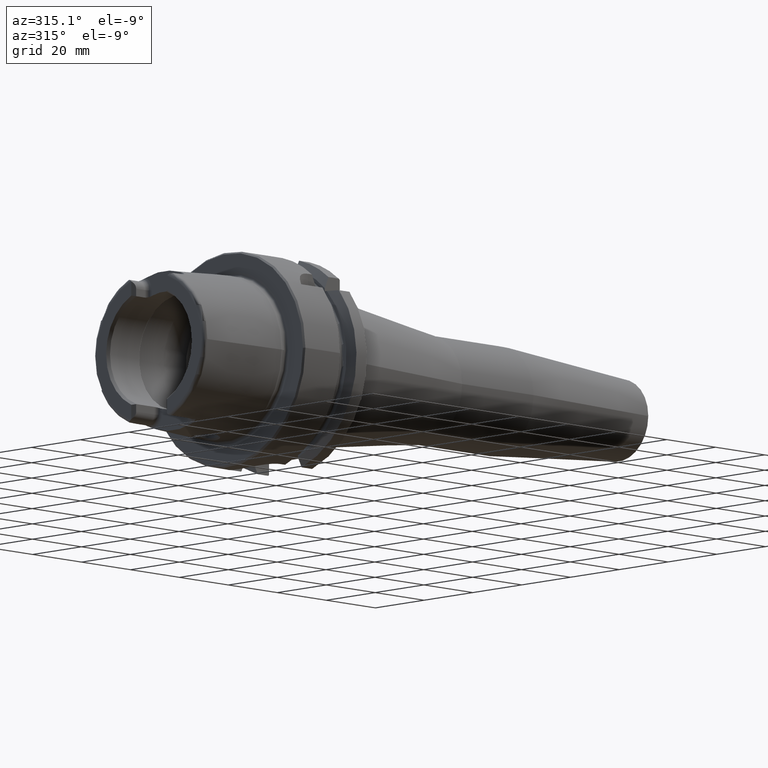
[diagram: clean part render]
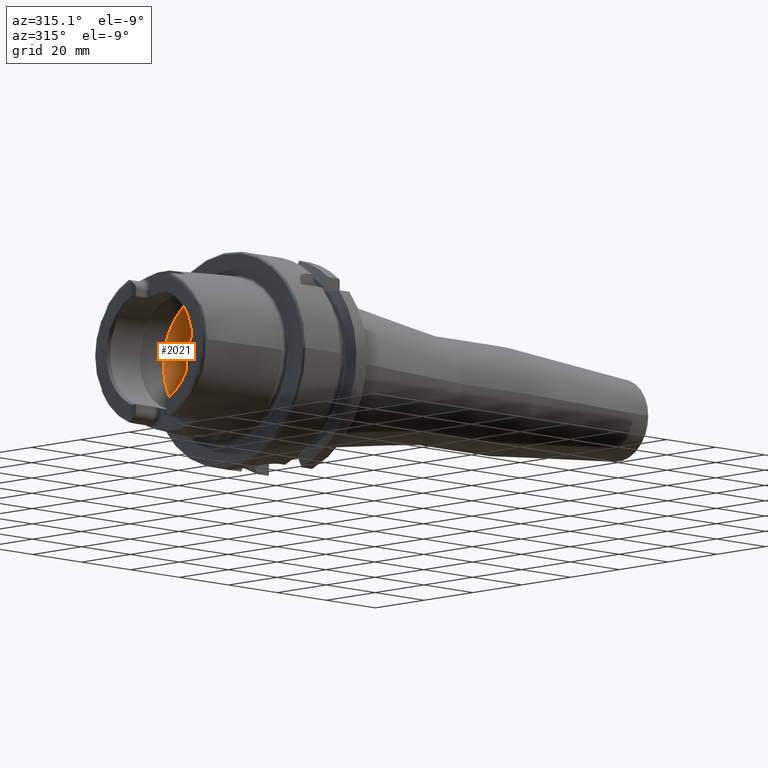
[diagram: same view with one face highlighted and labeled with its STEP entity id]
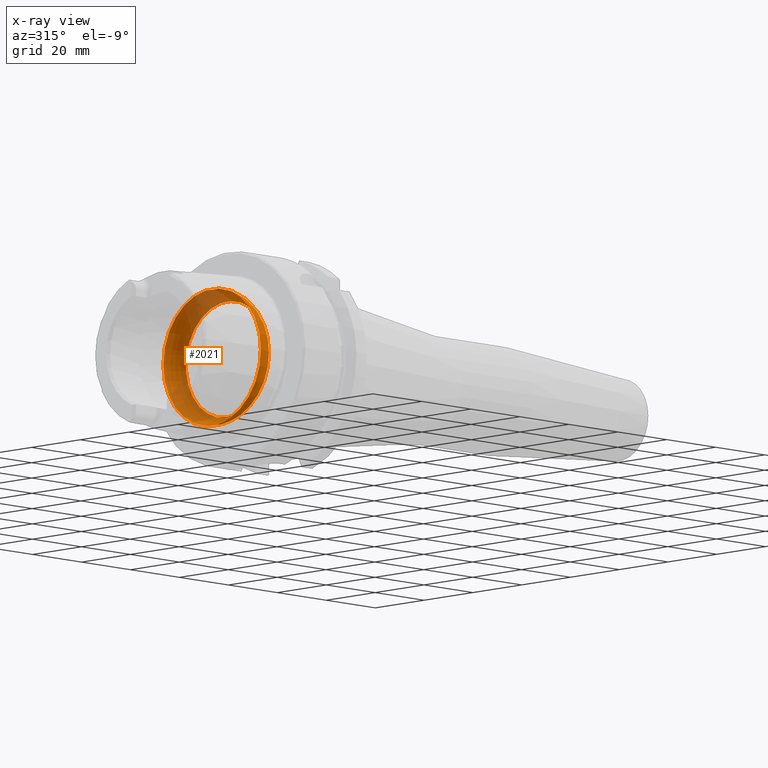
[diagram: x-ray of the same camera — body ghosted, the highlighted face saturated]
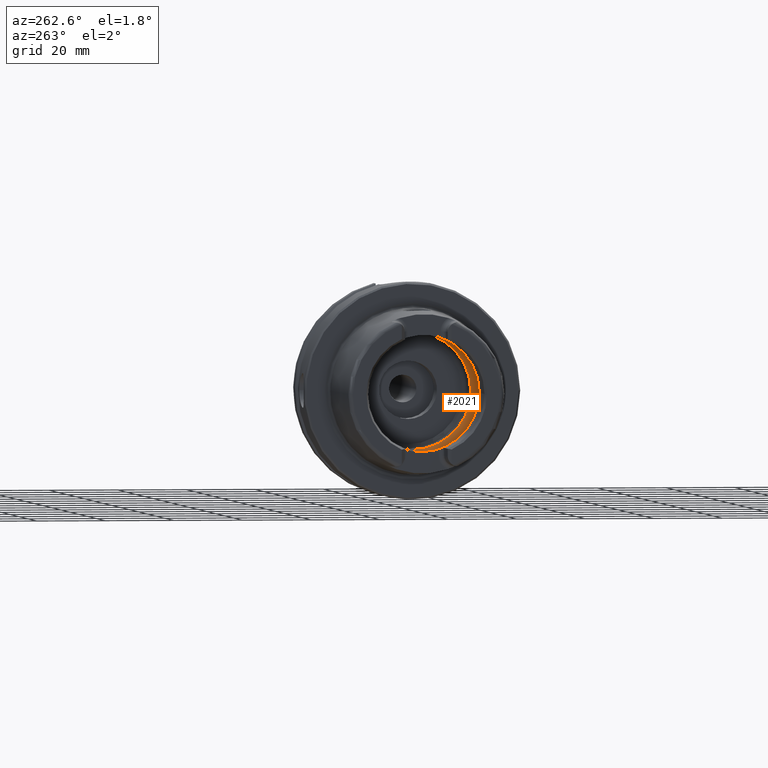
[diagram: same view with one face highlighted and labeled with its STEP entity id]
A machine part, auxiliary view. The second image highlights one B-rep face of the part: STEP entity #2021.
The next image is the same camera in x-ray: the body ghosted, the highlighted face saturated — about 37% of this face is hidden behind the body in this view.
A second angle (auxiliary view) of the same face is appended — the face is thin or edge-on in the first view.
In plain terms, the highlighted toroidal blend (fillet) surface has major radius 12 mm and minor (blend) radius 8 mm.
Its self-contained STEP definition (entity closure, byte-faithful):
#49=B_SPLINE_CURVE_WITH_KNOTS('',3,(#3553,#3554,#3555,#3556,#3557,#3558,
#3559,#3560,#3561,#3562,#3563,#3564),.UNSPECIFIED.,.F.,.F.,(4,2,2,2,2,4),
(-0.560647090003115,-0.432465132423936,-0.371738630353782,-0.32053783623797,
-0.287500355516274,-0.280385270121909),.UNSPECIFIED.);
#51=B_SPLINE_CURVE_WITH_KNOTS('',3,(#3597,#3598,#3599,#3600,#3601,#3602,
#3603,#3604,#3605,#3606),.UNSPECIFIED.,.F.,.F.,(4,2,2,2,4),(-0.280385270121909,
-0.256917987419631,-0.21744735037608,-0.138661357565599,0.),
 .UNSPECIFIED.);
#54=B_SPLINE_CURVE_WITH_KNOTS('',3,(#3722,#3723,#3724,#3725,#3726,#3727,
#3728,#3729,#3730,#3731,#3732,#3733),.UNSPECIFIED.,.F.,.F.,(4,2,2,2,2,4),
(-0.560647090003256,-0.432465132424011,-0.371738630353825,-0.32053783623799,
-0.287500355516289,-0.280385270121924),.UNSPECIFIED.);
#56=B_SPLINE_CURVE_WITH_KNOTS('',3,(#3766,#3767,#3768,#3769,#3770,#3771,
#3772,#3773,#3774,#3775),.UNSPECIFIED.,.F.,.F.,(4,2,2,2,4),(-0.280385270121924,
-0.256917987419636,-0.217447350376074,-0.138661357565593,0.),
 .UNSPECIFIED.);
#145=TOROIDAL_SURFACE('',#2214,12.,8.);
#247=FACE_OUTER_BOUND('',#375,.T.);
#375=EDGE_LOOP('',(#1523,#1524,#1525,#1526,#1527,#1528,#1529,#1530,#1531,
#1532,#1533));
#724=CIRCLE('',#2209,20.);
#727=CIRCLE('',#2212,20.);
#728=CIRCLE('',#2213,20.);
#729=CIRCLE('',#2215,17.);
#730=CIRCLE('',#2216,17.);
#731=CIRCLE('',#2217,8.);
#897=VERTEX_POINT('',#3550);
#898=VERTEX_POINT('',#3552);
#899=VERTEX_POINT('',#3565);
#902=VERTEX_POINT('',#3720);
#903=VERTEX_POINT('',#3721);
#904=VERTEX_POINT('',#3734);
#905=VERTEX_POINT('',#3778);
#908=VERTEX_POINT('',#3788);
#909=VERTEX_POINT('',#3789);
#1129=EDGE_CURVE('',#898,#897,#49,.T.);
#1131=EDGE_CURVE('',#897,#899,#51,.T.);
#1135=EDGE_CURVE('',#902,#903,#54,.T.);
#1137=EDGE_CURVE('',#903,#904,#56,.T.);
#1139=EDGE_CURVE('',#905,#902,#724,.T.);
#1143=EDGE_CURVE('',#899,#905,#727,.T.);
#1144=EDGE_CURVE('',#904,#898,#728,.T.);
#1145=EDGE_CURVE('',#908,#909,#729,.T.);
#1146=EDGE_CURVE('',#909,#908,#730,.T.);
#1147=EDGE_CURVE('',#909,#897,#731,.T.);
#1523=ORIENTED_EDGE('',*,*,#1145,.F.);
#1524=ORIENTED_EDGE('',*,*,#1146,.F.);
#1525=ORIENTED_EDGE('',*,*,#1147,.T.);
#1526=ORIENTED_EDGE('',*,*,#1131,.T.);
#1527=ORIENTED_EDGE('',*,*,#1143,.T.);
#1528=ORIENTED_EDGE('',*,*,#1139,.T.);
#1529=ORIENTED_EDGE('',*,*,#1135,.T.);
#1530=ORIENTED_EDGE('',*,*,#1137,.T.);
#1531=ORIENTED_EDGE('',*,*,#1144,.T.);
#1532=ORIENTED_EDGE('',*,*,#1129,.T.);
#1533=ORIENTED_EDGE('',*,*,#1147,.F.);
#2021=ADVANCED_FACE('',(#247),#145,.F.);
#2209=AXIS2_PLACEMENT_3D('',#3779,#2590,#2591);
#2212=AXIS2_PLACEMENT_3D('',#3785,#2597,#2598);
#2213=AXIS2_PLACEMENT_3D('',#3786,#2599,#2600);
#2214=AXIS2_PLACEMENT_3D('',#3787,#2601,#2602);
#2215=AXIS2_PLACEMENT_3D('',#3790,#2603,#2604);
#2216=AXIS2_PLACEMENT_3D('',#3791,#2605,#2606);
#2217=AXIS2_PLACEMENT_3D('',#3792,#2607,#2608);
#2590=DIRECTION('center_axis',(-1.,0.,0.));
#2591=DIRECTION('ref_axis',(0.,0.,1.));
#2597=DIRECTION('center_axis',(-1.,0.,0.));
#2598=DIRECTION('ref_axis',(0.,0.,1.));
#2599=DIRECTION('center_axis',(-1.,0.,0.));
#2600=DIRECTION('ref_axis',(0.,0.,1.));
#2601=DIRECTION('center_axis',(-1.,0.,0.));
#2602=DIRECTION('ref_axis',(0.,0.,1.));
#2603=DIRECTION('center_axis',(-1.,0.,0.));
#2604=DIRECTION('ref_axis',(0.,0.,1.));
#2605=DIRECTION('center_axis',(-1.,0.,0.));
#2606=DIRECTION('ref_axis',(0.,0.,1.));
#2607=DIRECTION('center_axis',(0.,1.,-1.22464679914735E-16));
#2608=DIRECTION('ref_axis',(0.,-1.22464679914735E-16,-1.));
#3550=CARTESIAN_POINT('',(-5.25,3.07683831259085E-16,-19.9378825251564));
#3552=CARTESIAN_POINT('',(-6.2449979983984,2.54410376580264,-19.8375284758165));
#3553=CARTESIAN_POINT('Ctrl Pts',(-6.2449979983984,2.54410376580263,-19.8375284758165));
#3554=CARTESIAN_POINT('Ctrl Pts',(-5.9563832733696,2.23156378381208,-19.877610794847));
#3555=CARTESIAN_POINT('Ctrl Pts',(-5.72238184052007,1.87139505615745,-19.9007586679726));
#3556=CARTESIAN_POINT('Ctrl Pts',(-5.47415257397377,1.29299577523533,-19.9221291461079));
#3557=CARTESIAN_POINT('Ctrl Pts',(-5.40951125063364,1.10084807786171,-19.9269865934584));
#3558=CARTESIAN_POINT('Ctrl Pts',(-5.31953029252225,0.738763665580492,-19.9333991732415));
#3559=CARTESIAN_POINT('Ctrl Pts',(-5.28971989928313,0.57048989328573,-19.9353426103026));
#3560=CARTESIAN_POINT('Ctrl Pts',(-5.25970604483208,0.291260075331645,-19.9372753146995));
#3561=CARTESIAN_POINT('Ctrl Pts',(-5.25276504295341,0.181279004510485,-19.9377089305339));
#3562=CARTESIAN_POINT('Ctrl Pts',(-5.25022501552319,0.0474369436209427,
-19.9378684144199));
#3563=CARTESIAN_POINT('Ctrl Pts',(-5.25,0.0237178817918345,-19.9378825251564));
#3564=CARTESIAN_POINT('Ctrl Pts',(-5.25,1.73633857888389E-16,-19.9378825251564));
#3565=CARTESIAN_POINT('',(-6.2449979983984,-2.54410376580264,-19.8375284758165));
#3597=CARTESIAN_POINT('Ctrl Pts',(-5.25,1.73633857888389E-16,-19.9378825251564));
#3598=CARTESIAN_POINT('Ctrl Pts',(-5.25,-0.0782273446147222,-19.9378825251564));
#3599=CARTESIAN_POINT('Ctrl Pts',(-5.25244785081342,-0.15644185230388,-19.9377296492436));
#3600=CARTESIAN_POINT('Ctrl Pts',(-5.26557067654327,-0.365860616871457,
-19.9368989370107));
#3601=CARTESIAN_POINT('Ctrl Pts',(-5.2807081654794,-0.496671474530444,-19.9359382432917));
#3602=CARTESIAN_POINT('Ctrl Pts',(-5.34656166936447,-0.885366242555149,
-19.9315392091305));
#3603=CARTESIAN_POINT('Ctrl Pts',(-5.41752174824152,-1.13897710923821,-19.9266508951874));
#3604=CARTESIAN_POINT('Ctrl Pts',(-5.68473945553282,-1.81246400136134,-19.9044561094296));
#3605=CARTESIAN_POINT('Ctrl Pts',(-5.93280828188796,-2.20603449935731,-19.880884849314));
#3606=CARTESIAN_POINT('Ctrl Pts',(-6.2449979983984,-2.54410376580263,-19.8375284758165));
#3720=CARTESIAN_POINT('',(-6.2449979983984,-2.54410376580264,19.8375284758165));
#3721=CARTESIAN_POINT('',(-5.25,4.81156178856766E-16,19.9378825251564));
#3722=CARTESIAN_POINT('Ctrl Pts',(-6.2449979983984,-2.54410376580264,19.8375284758165));
#3723=CARTESIAN_POINT('Ctrl Pts',(-5.9563832733696,-2.23156378381209,19.877610794847));
#3724=CARTESIAN_POINT('Ctrl Pts',(-5.72238184052007,-1.87139505615746,19.9007586679726));
#3725=CARTESIAN_POINT('Ctrl Pts',(-5.47415257397376,-1.29299577523533,19.9221291461079));
#3726=CARTESIAN_POINT('Ctrl Pts',(-5.40951125063363,-1.10084807786172,19.9269865934584));
#3727=CARTESIAN_POINT('Ctrl Pts',(-5.31953029252225,-0.738763665580501,
19.9333991732415));
#3728=CARTESIAN_POINT('Ctrl Pts',(-5.28971989928313,-0.570489893285745,
19.9353426103026));
#3729=CARTESIAN_POINT('Ctrl Pts',(-5.25970604483207,-0.291260075331669,
19.9372753146995));
#3730=CARTESIAN_POINT('Ctrl Pts',(-5.2527650429534,-0.181279004510531,19.9377089305339));
#3731=CARTESIAN_POINT('Ctrl Pts',(-5.25022501552319,-0.0474369436209401,
19.9378684144199));
#3732=CARTESIAN_POINT('Ctrl Pts',(-5.25,-0.0237178817918311,19.9378825251564));
#3733=CARTESIAN_POINT('Ctrl Pts',(-5.25,5.15920899939407E-16,19.9378825251564));
#3734=CARTESIAN_POINT('',(-6.2449979983984,2.54410376580264,19.8375284758165));
#3766=CARTESIAN_POINT('Ctrl Pts',(-5.25,5.15920899939407E-16,19.9378825251564));
#3767=CARTESIAN_POINT('Ctrl Pts',(-5.25,0.0782273446147462,19.9378825251564));
#3768=CARTESIAN_POINT('Ctrl Pts',(-5.25244785081342,0.156441852303891,19.9377296492436));
#3769=CARTESIAN_POINT('Ctrl Pts',(-5.26557067654326,0.36586061687142,19.9368989370107));
#3770=CARTESIAN_POINT('Ctrl Pts',(-5.28070816547939,0.496671474530425,19.9359382432917));
#3771=CARTESIAN_POINT('Ctrl Pts',(-5.34656166936446,0.885366242555101,19.9315392091305));
#3772=CARTESIAN_POINT('Ctrl Pts',(-5.41752174824151,1.13897710923819,19.9266508951874));
#3773=CARTESIAN_POINT('Ctrl Pts',(-5.68473945553283,1.81246400136138,19.9044561094296));
#3774=CARTESIAN_POINT('Ctrl Pts',(-5.93280828188797,2.20603449935733,19.880884849314));
#3775=CARTESIAN_POINT('Ctrl Pts',(-6.2449979983984,2.54410376580264,19.8375284758165));
#3778=CARTESIAN_POINT('',(-6.2449979983984,-20.,2.44929359829471E-15));
#3779=CARTESIAN_POINT('Origin',(-6.2449979983984,0.,0.));
#3785=CARTESIAN_POINT('Origin',(-6.2449979983984,0.,0.));
#3786=CARTESIAN_POINT('Origin',(-6.2449979983984,0.,0.));
#3787=CARTESIAN_POINT('Origin',(-6.2449979983984,0.,0.));
#3788=CARTESIAN_POINT('',(0.,-17.,2.0818995585505E-15));
#3789=CARTESIAN_POINT('',(0.,-2.0818995585505E-15,-17.));
#3790=CARTESIAN_POINT('Origin',(0.,0.,0.));
#3791=CARTESIAN_POINT('Origin',(0.,0.,0.));
#3792=CARTESIAN_POINT('Origin',(-6.2449979983984,-1.46957615897682E-15,
-12.));